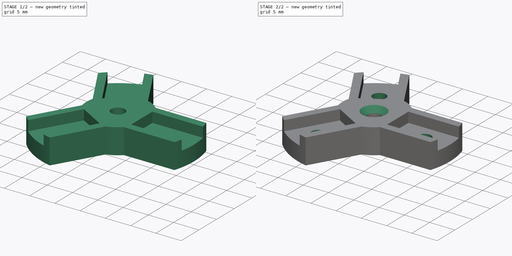
[diagram: build sequence overview — one tinted view per stage of 2, left to right]
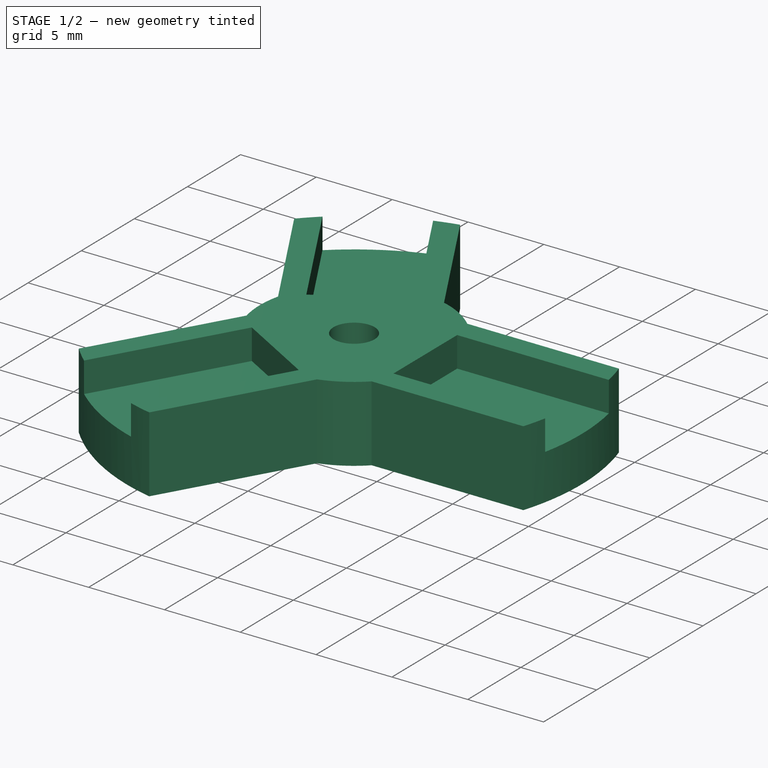
[diagram: stage 1 of 2 — iso view after this stage's code; geometry added in this stage tinted green]
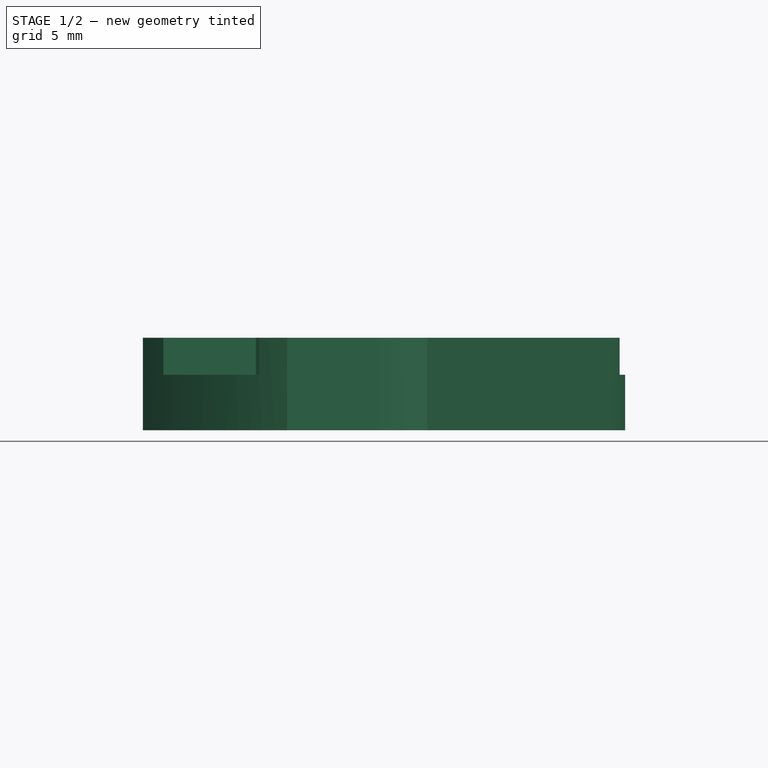
[diagram: stage 1 of 2 — front view after this stage's code; geometry added in this stage tinted green]
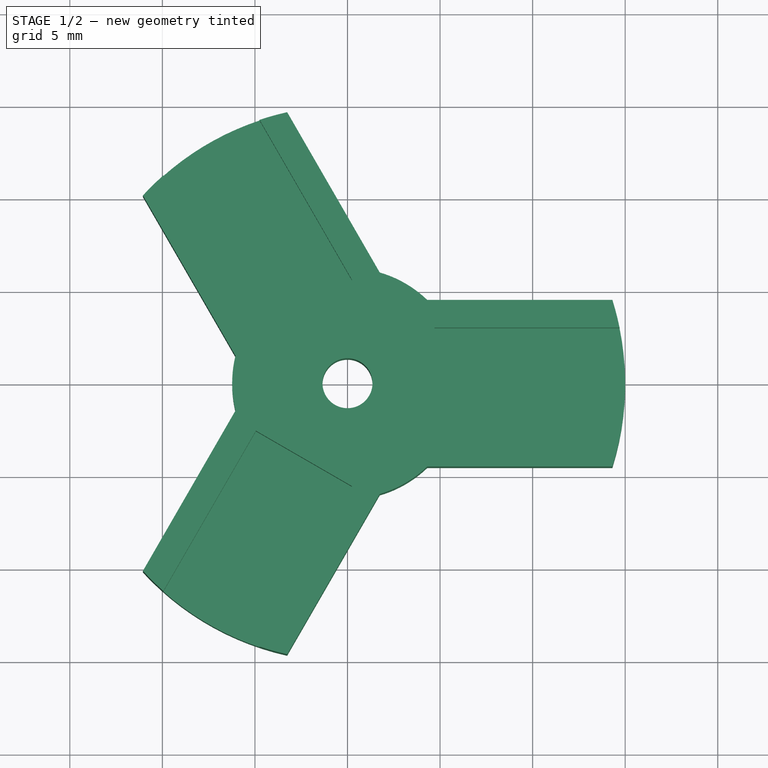
[diagram: stage 1 of 2 — top view after this stage's code; geometry added in this stage tinted green]
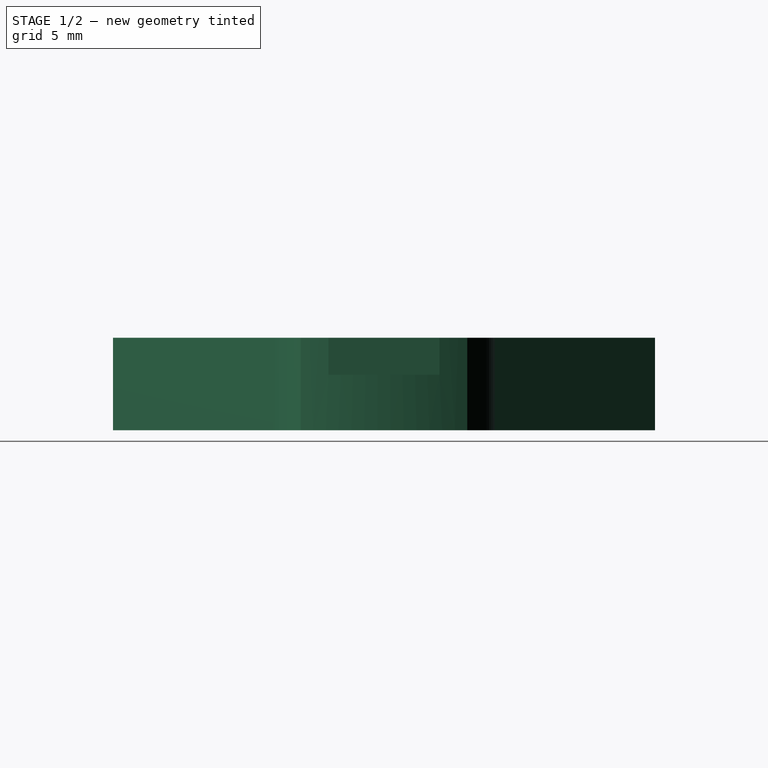
[diagram: stage 1 of 2 — right view after this stage's code; geometry added in this stage tinted green]
FCSTD DOCUMENT  (FreeCAD 0.16R6712 (Git))
Label: windCupHolderv2
License: All rights reserved
LicenseURL: http://en.wikipedia.org/wiki/All_rights_reserved
objects: Sketcher::SketchObject×3, PartDesign::Pocket×2, PartDesign::Pad×1, PartDesign::Chamfer×1
note: 10 computed .brp shape members not serialized (recipe doc carries the construction recipe); baked Part::Feature solids carry a one-line shape summary decoded from their .brp

FEATURE [Sketcher::SketchObject] Sketch
  sketch-geometry (15):
    g0: ArcOfCircle CenterX=0 CenterY=0 CenterZ=0 NormalX=0 NormalY=0 NormalZ=1 Radius=15 StartAngle=1.7897 EndAngle=2.39909
    g1: Circle CenterX=0 CenterY=0 CenterZ=0 NormalX=0 NormalY=0 NormalZ=1 Radius=1.35
    g2: LineSegment [constr] StartX=0 StartY=0 StartZ=0 EndX=-7.5 EndY=12.9904 EndZ=0
    g3: LineSegment [constr] StartX=0 StartY=0 StartZ=0 EndX=-7.5 EndY=-12.9904 EndZ=0
    g4: LineSegment StartX=14.3091 StartY=4.5 StartZ=0 EndX=4.30909 EndY=4.5 EndZ=0
    g5: LineSegment StartX=14.3091 StartY=-4.5 StartZ=0 EndX=4.30909 EndY=-4.5 EndZ=0
    g6: LineSegment StartX=-11.0517 StartY=10.142 StartZ=0 EndX=-6.05166 EndY=1.48178 EndZ=0
    g7: LineSegment StartX=-3.25743 StartY=14.642 StartZ=0 EndX=1.74257 EndY=5.98178 EndZ=0
    g8: LineSegment StartX=-11.0517 StartY=-10.142 StartZ=0 EndX=-6.05166 EndY=-1.48178 EndZ=0
    g9: LineSegment StartX=-3.25743 StartY=-14.642 StartZ=0 EndX=1.74257 EndY=-5.98178 EndZ=0
    g10: ArcOfCircle CenterX=0 CenterY=0 CenterZ=0 NormalX=0 NormalY=0 NormalZ=1 Radius=6.23043 StartAngle=2.90146 EndAngle=3.38172
    g11: ArcOfCircle CenterX=0 CenterY=0 CenterZ=0 NormalX=0 NormalY=0 NormalZ=1 Radius=15 StartAngle=3.8841 EndAngle=4.49348
    g12: ArcOfCircle CenterX=0 CenterY=0 CenterZ=0 NormalX=0 NormalY=0 NormalZ=1 Radius=15 StartAngle=5.97849 EndAngle=6.58788
    g13: ArcOfCircle CenterX=0 CenterY=0 CenterZ=0 NormalX=0 NormalY=0 NormalZ=1 Radius=6.23043 StartAngle=4.99586 EndAngle=5.47612
    g14: ArcOfCircle CenterX=0 CenterY=0 CenterZ=0 NormalX=0 NormalY=0 NormalZ=1 Radius=6.23043 StartAngle=0.807067 EndAngle=1.28733
  constraints (48):
    c: Coincident(g0,g-1)
    c: Radius(g0) = 15
    c: Coincident(g1,g-1)
    c: Radius(g1) = 1.35
    c: Coincident(g2,g-1)
    c: Coincident(g3,g-1)
    c: PointOnObject(g3,g0)
    c: PointOnObject(g2,g0)
    c: Angle(g-1,g2) = 2.0944
    c: Angle(g3,g-1) = 2.0944
    c: Horizontal(g4)
    c: PointOnObject(g5,g0)
    c: Horizontal(g5)
    c: PointOnObject(g9,g0)
    c: Parallel(g6,g2)
    c: Parallel(g7,g2)
    c: Parallel(g8,g3)
    c: Parallel(g9,g3)
    c: Symmetric(g4,g5,g-1)
    c: Distance(g5) = 10
    c: Equal(g9,g5)
    c: Equal(g6,g5)
    c: PointOnObject(g4,g10)
    c: PointOnObject(g5,g10)
    c: PointOnObject(g9,g10)
    c: Coincident(g0,g7)
    c: Coincident(g12,g4)
    c: Equal(g0,g11)
    c: Coincident(g0,g6)
    c: Coincident(g11,g8)
    c: Coincident(g0,g11)
    c: Equal(g11,g12)
    c: PointOnObject(g11,g9)
    c: PointOnObject(g12,g5)
    c: Coincident(g11,g12)
    c: PointOnObject(g14,g7)
    c: Coincident(g10,g6)
    c: Equal(g10,g13)
    c: Coincident(g10,g8)
    c: Coincident(g10,g13)
    c: PointOnObject(g13,g9)
    c: Equal(g13,g14)
    c: PointOnObject(g13,g5)
    c: PointOnObject(g14,g4)
    c: Coincident(g13,g14)
    c: Symmetric(g6,g7,g2)
    c: Symmetric(g8,g9,g3)
    c: DistanceY(g5,g4) = 9
FEATURE [PartDesign::Pad] Pad
  Length = 5
  Length2 = 100
  Sketch = -> Sketch
  Type = 0
FEATURE [Sketcher::SketchObject] Sketch001
  Placement = pos=(0,0,5) rot=(0,0,1;0rad)
  Support = -> Pad [Face15]
  sketch-geometry (15):
    g0: Circle [constr] CenterX=0 CenterY=0 CenterZ=0 NormalX=0 NormalY=0 NormalZ=1 Radius=15
    g1: LineSegment [constr] StartX=0 StartY=0 StartZ=0 EndX=-7.5 EndY=12.9904 EndZ=0
    g2: LineSegment [constr] StartX=0 StartY=0 StartZ=0 EndX=-7.5 EndY=-12.9904 EndZ=0
    g3: LineSegment StartX=-9.94655 StartY=11.2279 StartZ=0 EndX=-4.94655 EndY=2.56767 EndZ=0
    g4: LineSegment StartX=-4.75039 StartY=14.2279 StartZ=0 EndX=0.249607 EndY=5.56767 EndZ=0
    g5: LineSegment StartX=14.6969 StartY=3 StartZ=0 EndX=4.69694 EndY=3 EndZ=0
    g6: LineSegment StartX=14.6969 StartY=-3 StartZ=0 EndX=4.69694 EndY=-3 EndZ=0
    g7: LineSegment StartX=-9.94655 StartY=-11.2279 StartZ=0 EndX=-4.94655 EndY=-2.56767 EndZ=0
    g8: LineSegment StartX=-4.75039 StartY=-14.2279 StartZ=0 EndX=0.249607 EndY=-5.56767 EndZ=0
    g9: LineSegment StartX=-4.94655 StartY=2.56767 StartZ=0 EndX=0.249607 EndY=5.56767 EndZ=0
    g10: LineSegment StartX=4.69694 StartY=3 StartZ=0 EndX=4.69694 EndY=-3 EndZ=0
    g11: LineSegment StartX=-4.94655 StartY=-2.56767 StartZ=0 EndX=0.249607 EndY=-5.56767 EndZ=0
    g12: ArcOfCircle CenterX=0 CenterY=0 CenterZ=0 NormalX=0 NormalY=0 NormalZ=1 Radius=15 StartAngle=6.08183 EndAngle=6.48454
    g13: ArcOfCircle CenterX=0 CenterY=0 CenterZ=0 NormalX=0 NormalY=0 NormalZ=1 Radius=15 StartAngle=1.89304 EndAngle=2.29575
    g14: ArcOfCircle CenterX=0 CenterY=0 CenterZ=0 NormalX=0 NormalY=0 NormalZ=1 Radius=15 StartAngle=3.98743 EndAngle=4.39015
  constraints (44):
    c: Coincident(g0,g-1)
    c: Radius(g0) = 15
    c: Coincident(g1,g-1)
    c: Coincident(g2,g-1)
    c: PointOnObject(g2,g0)
    c: PointOnObject(g1,g0)
    c: Angle(g-1,g1) = 2.0944
    c: Angle(g2,g-1) = 2.0944
    c: PointOnObject(g3,g0)
    c: PointOnObject(g4,g0)
    c: PointOnObject(g5,g0)
    c: Horizontal(g5)
    c: PointOnObject(g6,g0)
    c: Horizontal(g6)
    c: PointOnObject(g7,g0)
    c: PointOnObject(g8,g0)
    c: Parallel(g7,g2)
    c: Parallel(g2,g8)
    c: Parallel(g3,g1)
    c: Parallel(g1,g4)
    c: Symmetric(g3,g4,g1)
    c: Symmetric(g7,g8,g2)
    c: Symmetric(g6,g5,g-1)
    c: Distance(g6,g5) = 6
    c: Distance(g3,g4) = 6
    c: Distance(g7,g8) = 6
    c: Coincident(g9,g3)
    c: Coincident(g9,g4)
    c: Coincident(g10,g5)
    c: Coincident(g10,g6)
    c: Coincident(g11,g7)
    c: Coincident(g11,g8)
    c: DistanceX(g6,g6) = 10
    c: Equal(g6,g3)
    c: Equal(g3,g8)
    c: Coincident(g12,g-1)
    c: Coincident(g12,g5)
    c: Coincident(g12,g6)
    c: Coincident(g13,g-1)
    c: Coincident(g13,g3)
    c: Coincident(g13,g4)
    c: Coincident(g14,g-1)
    c: Coincident(g14,g7)
    c: Coincident(g14,g8)
FEATURE [PartDesign::Pocket] Pocket
  Length = 2
  Sketch = -> Sketch001
  Type = 0
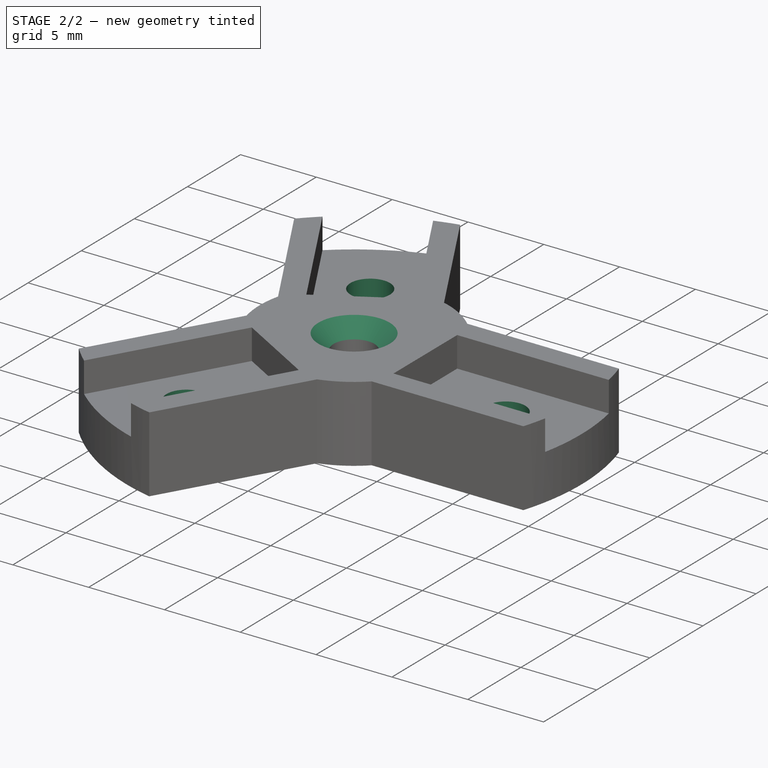
[diagram: stage 2 of 2 — iso view after this stage's code; geometry added in this stage tinted green]
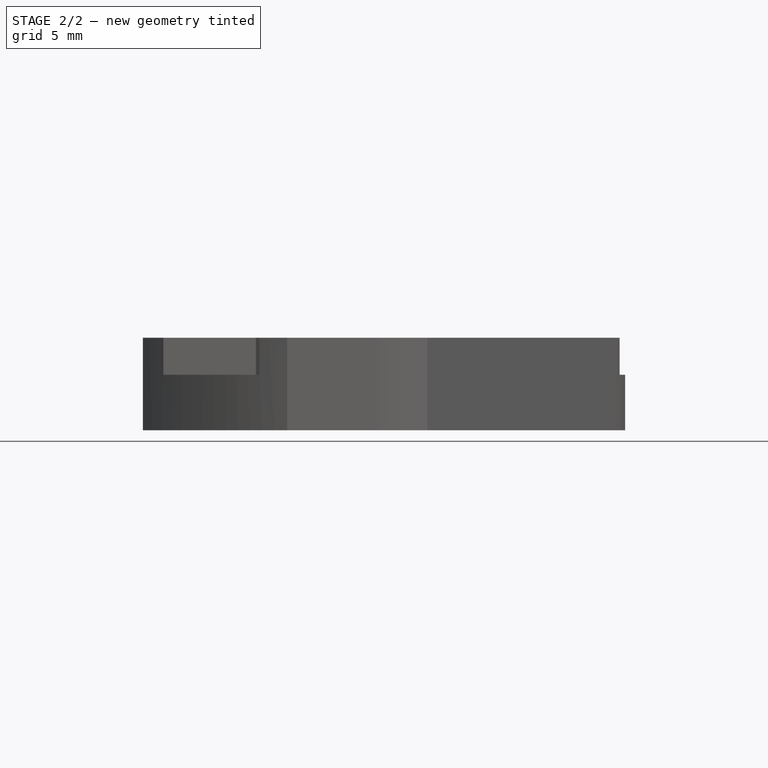
[diagram: stage 2 of 2 — front view after this stage's code; geometry added in this stage tinted green]
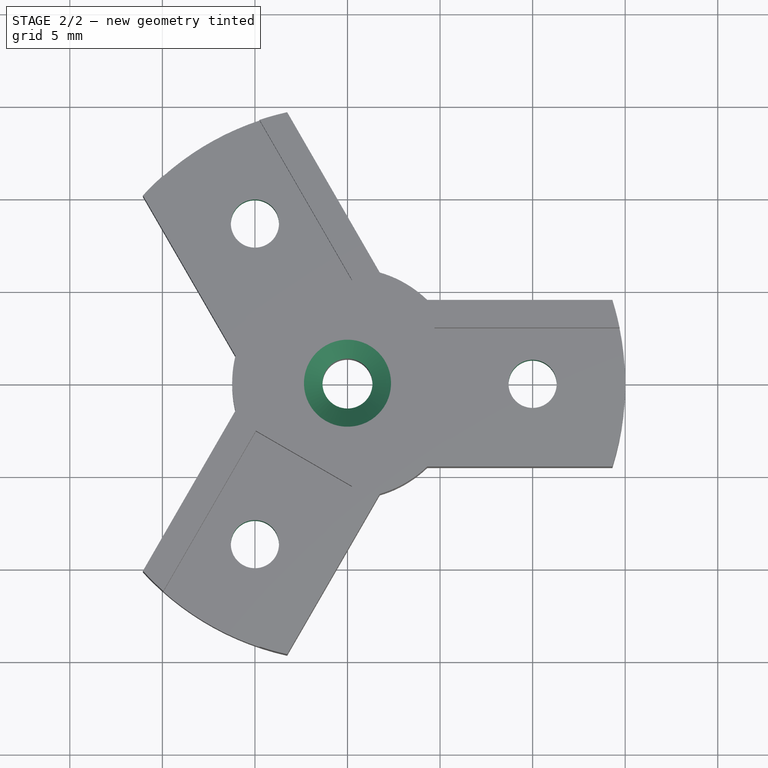
[diagram: stage 2 of 2 — top view after this stage's code; geometry added in this stage tinted green]
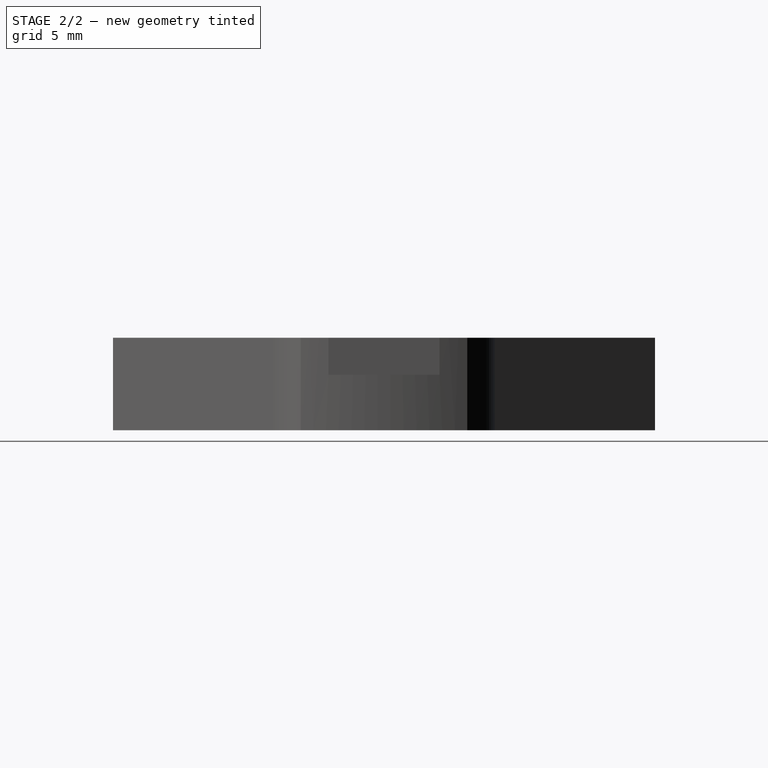
[diagram: stage 2 of 2 — right view after this stage's code; geometry added in this stage tinted green]
FEATURE [Sketcher::SketchObject] Sketch002
  Placement = pos=(0,0,0) rot=(1,0,0;3.14159rad)
  Support = -> Pocket [Face2]
  sketch-geometry (5):
    g0: LineSegment [constr] StartX=0 StartY=0 StartZ=0 EndX=-8.39778 EndY=14.5454 EndZ=0
    g1: LineSegment [constr] StartX=0 StartY=0 StartZ=0 EndX=-10.132 EndY=-17.5492 EndZ=0
    g2: Circle CenterX=10 CenterY=0 CenterZ=0 NormalX=0 NormalY=0 NormalZ=1 Radius=1.3
    g3: Circle CenterX=-5 CenterY=8.66025 CenterZ=0 NormalX=0 NormalY=0 NormalZ=1 Radius=1.3
    g4: Circle CenterX=-5 CenterY=-8.66025 CenterZ=0 NormalX=0 NormalY=0 NormalZ=1 Radius=1.3
  constraints (13):
    c: Coincident(g0,g-1)
    c: Coincident(g1,g-1)
    c: Angle(g-1,g0) = 2.0944
    c: Angle(g1,g-1) = 2.0944
    c: PointOnObject(g2,g-1)
    c: PointOnObject(g3,g0)
    c: PointOnObject(g4,g1)
    c: Radius(g2) = 1.3
    c: Equal(g3,g2)
    c: Equal(g2,g4)
    c: Distance(g-1,g2) = 10
    c: Distance(g-1,g3) = 10
    c: Distance(g-1,g4) = 10
FEATURE [PartDesign::Pocket] Pocket001
  Length = 3
  Sketch = -> Sketch002
  Type = 0
FEATURE [PartDesign::Chamfer] Chamfer
  Base = -> Pocket001 [Edge47]
  Size = 1
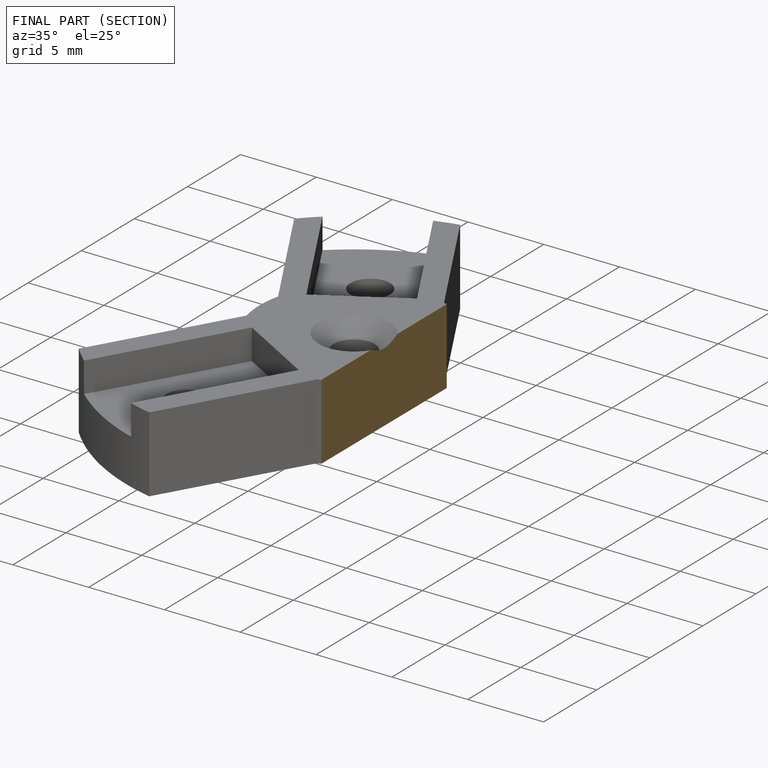
[diagram: finished part — half-section view (interior)]
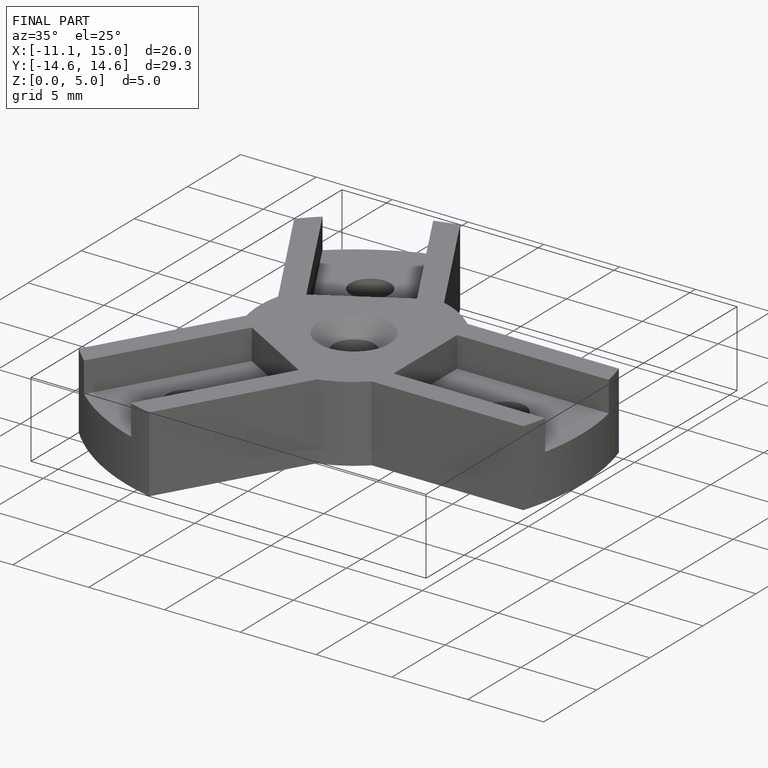
[diagram: finished part — iso view with bounding-box wireframe]
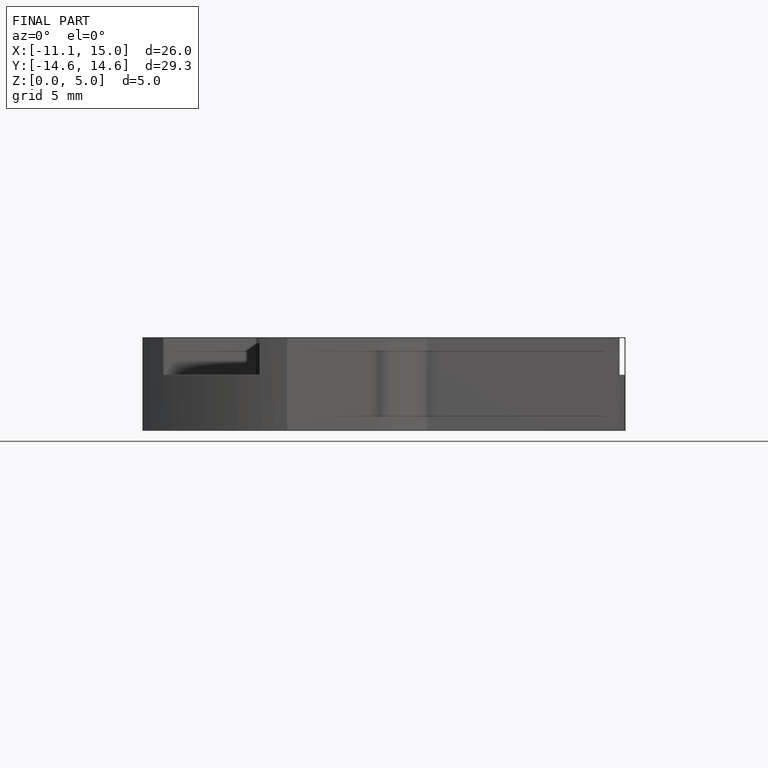
[diagram: finished part — front view with bounding-box wireframe]
